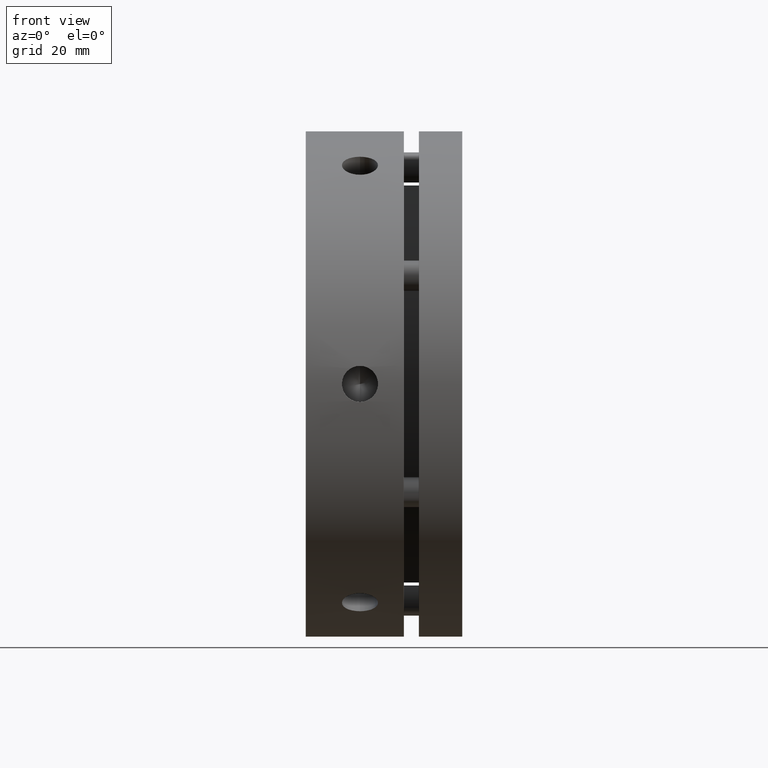
[diagram: clean part render]
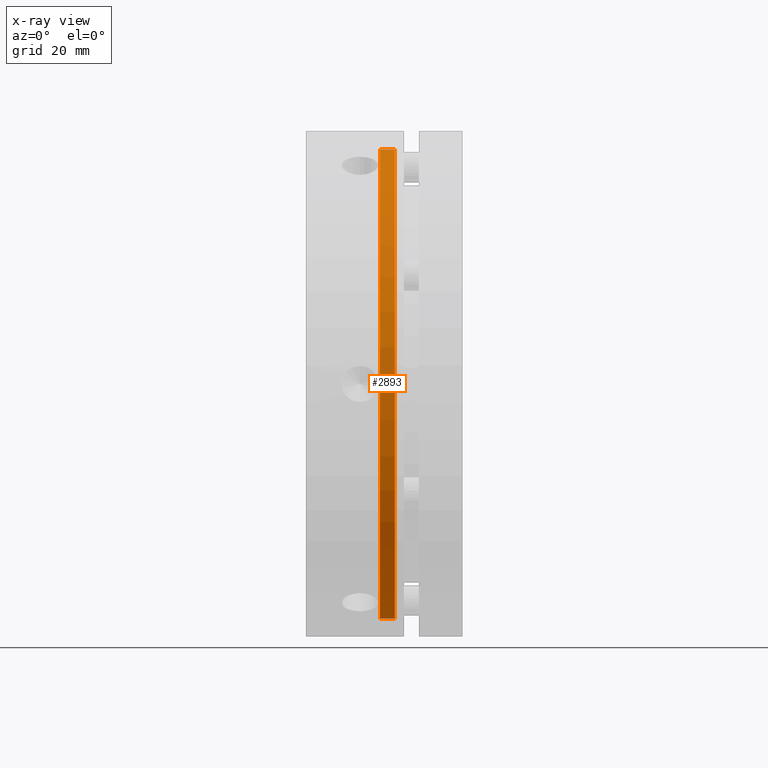
[diagram: x-ray — body ghosted, one internal face saturated and labeled with its STEP entity id]
A machine part, front view, then the same camera in x-ray: the body is ghosted and one INTERNAL B-rep face — a face not visible from any outside direction — is saturated and labeled: STEP entity #2893.
In plain terms, the highlighted cylindrical surface (partial cylindrical patch) has radius 39 mm, axis along (-1, 0, 0).
Its self-contained STEP definition (entity closure, byte-faithful):
#56 = AXIS2_PLACEMENT_3D ( 'NONE', #4037, #4035, #4033 ) ;
#923 = ORIENTED_EDGE ( 'NONE', *, *, #1494, .F. ) ;
#924 = ORIENTED_EDGE ( 'NONE', *, *, #1495, .T. ) ;
#925 = ORIENTED_EDGE ( 'NONE', *, *, #1497, .T. ) ;
#926 = ORIENTED_EDGE ( 'NONE', *, *, #1499, .T. ) ;
#1494 = EDGE_CURVE ( 'NONE', #4501, #4494, #2063, .T. ) ;
#1495 = EDGE_CURVE ( 'NONE', #4495, #4494, #2066, .T. ) ;
#1497 = EDGE_CURVE ( 'NONE', #4500, #4495, #2070, .T. ) ;
#1499 = EDGE_CURVE ( 'NONE', #4501, #4500, #2071, .T. ) ;
#1693 = EDGE_LOOP ( 'NONE', ( #926, #925, #924, #923 ) ) ;
#2063 = LINE ( 'NONE', #3288, #2069 ) ;
#2066 = CIRCLE ( 'NONE', #3007, 39.00000000000000700 ) ;
#2069 = VECTOR ( 'NONE', #3292, 1000.000000000000000 ) ;
#2070 = LINE ( 'NONE', #3294, #2074 ) ;
#2071 = CIRCLE ( 'NONE', #3008, 39.00000000000000700 ) ;
#2074 = VECTOR ( 'NONE', #3299, 1000.000000000000000 ) ;
#2429 = FACE_OUTER_BOUND ( 'NONE', #1693, .T. ) ;
#2440 = CYLINDRICAL_SURFACE ( 'NONE', #56, 39.00000000000000700 ) ;
#2893 = ADVANCED_FACE ( 'NONE', ( #2429 ), #2440, .F. ) ;
#3007 = AXIS2_PLACEMENT_3D ( 'NONE', #3296, #3297, #3298 ) ;
#3008 = AXIS2_PLACEMENT_3D ( 'NONE', #3303, #3304, #3305 ) ;
#3288 = CARTESIAN_POINT ( 'NONE',  ( 13.55000000000000400, 0.0000000000000000000, 39.00000000000000700 ) ) ;
#3292 = DIRECTION ( 'NONE',  ( -1.000000000000000000, 0.0000000000000000000, 0.0000000000000000000 ) ) ;
#3294 = CARTESIAN_POINT ( 'NONE',  ( 13.55000000000000400, 4.776122516674678700E-015, -39.00000000000000700 ) ) ;
#3296 = CARTESIAN_POINT ( 'NONE',  ( 12.30000000000000800, 0.0000000000000000000, 0.0000000000000000000 ) ) ;
#3297 = DIRECTION ( 'NONE',  ( -1.000000000000000000, 0.0000000000000000000, 0.0000000000000000000 ) ) ;
#3298 = DIRECTION ( 'NONE',  ( 0.0000000000000000000, 0.0000000000000000000, 1.000000000000000000 ) ) ;
#3299 = DIRECTION ( 'NONE',  ( -1.000000000000000000, 0.0000000000000000000, 0.0000000000000000000 ) ) ;
#3303 = CARTESIAN_POINT ( 'NONE',  ( 14.80000000000000100, 0.0000000000000000000, 0.0000000000000000000 ) ) ;
#3304 = DIRECTION ( 'NONE',  ( 1.000000000000000000, -0.0000000000000000000, -0.0000000000000000000 ) ) ;
#3305 = DIRECTION ( 'NONE',  ( 0.0000000000000000000, 0.0000000000000000000, 1.000000000000000000 ) ) ;
#4033 = DIRECTION ( 'NONE',  ( 0.0000000000000000000, 0.0000000000000000000, 1.000000000000000000 ) ) ;
#4035 = DIRECTION ( 'NONE',  ( -1.000000000000000000, 0.0000000000000000000, 0.0000000000000000000 ) ) ;
#4037 = CARTESIAN_POINT ( 'NONE',  ( 13.55000000000000400, 0.0000000000000000000, 0.0000000000000000000 ) ) ;
#4248 = CARTESIAN_POINT ( 'NONE',  ( 12.30000000000000800, 4.776122516674678700E-015, -39.00000000000000700 ) ) ;
#4254 = CARTESIAN_POINT ( 'NONE',  ( 12.30000000000000800, 0.0000000000000000000, 39.00000000000000700 ) ) ;
#4259 = CARTESIAN_POINT ( 'NONE',  ( 14.80000000000000100, 4.776122516674678700E-015, -39.00000000000000700 ) ) ;
#4260 = CARTESIAN_POINT ( 'NONE',  ( 14.80000000000000100, 0.0000000000000000000, 39.00000000000000700 ) ) ;
#4494 = VERTEX_POINT ( 'NONE', #4254 ) ;
#4495 = VERTEX_POINT ( 'NONE', #4248 ) ;
#4500 = VERTEX_POINT ( 'NONE', #4259 ) ;
#4501 = VERTEX_POINT ( 'NONE', #4260 ) ;